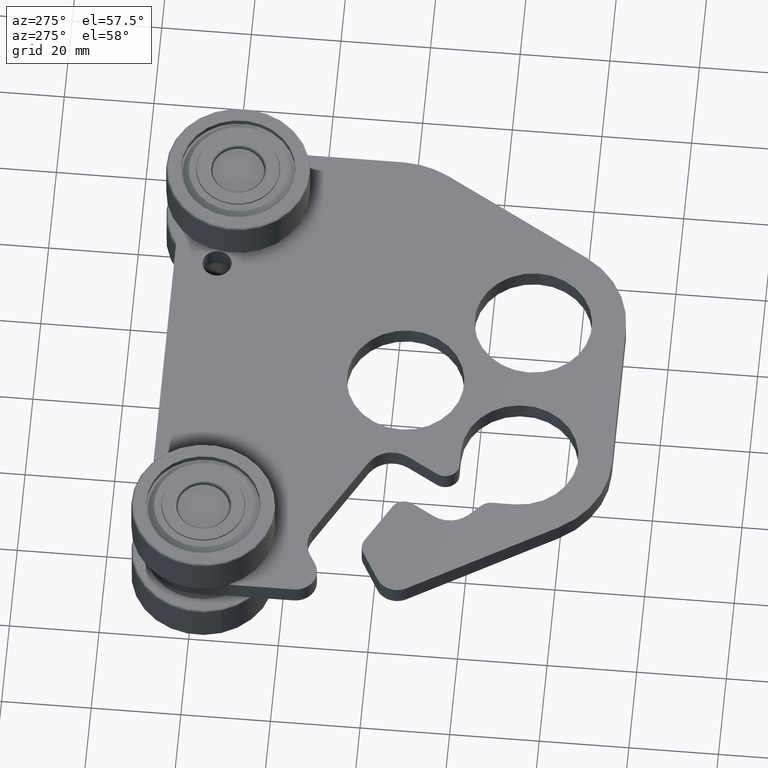
[diagram: clean part render]
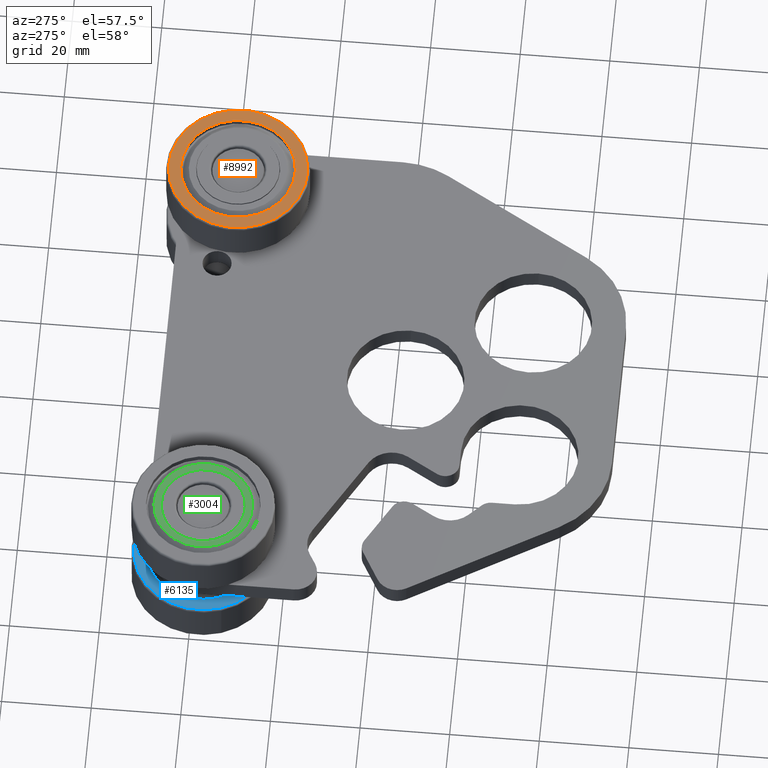
[diagram: same view with three faces highlighted in distinct colors, each labeled with its STEP entity id]
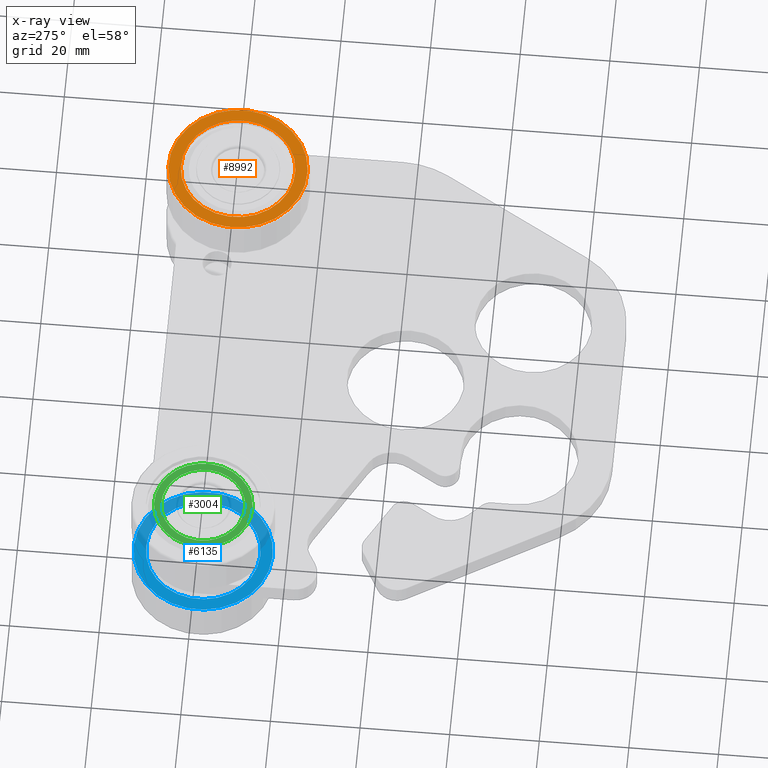
[diagram: x-ray of the same camera — body ghosted, the three highlighted faces saturated]
A machine part, auxiliary view with three faces highlighted in distinct colors.
The next image is the same camera in x-ray (body ghosted, the three faces saturated) — at least one of them is partly hidden behind the body in this view.
Their STEP definitions:

[orange] entity #8992 — the highlighted planar face has unit normal (0, 0, -1).
#8934=CARTESIAN_POINT('',(1.351014865895029,1.195396582901642,0.662700787401575));
#8935=VERTEX_POINT('',#8934);
#8936=CARTESIAN_POINT('',(1.749999999999998,1.500000000000001,0.662700787401575));
#8937=DIRECTION('',(0.0,0.0,-1.0));
#8938=DIRECTION('',(-0.794840973040489,-0.606817787788104,0.0));
#8939=AXIS2_PLACEMENT_3D('',#8936,#8937,#8938);
#8940=CIRCLE('',#8939,0.501968503937008);
#8941=EDGE_CURVE('',#8935,#8935,#8940,.T.);
#8973=CARTESIAN_POINT('',(1.749999999999998,1.500000000000001,0.662700787401575));
#8974=DIRECTION('',(0.0,0.0,-1.0));
#8975=DIRECTION('',(0.606817787788104,-0.794840973040489,0.0));
#8976=AXIS2_PLACEMENT_3D('',#8973,#8974,#8975);
#8977=PLANE('',#8976);
#8978=CARTESIAN_POINT('',(2.235040751264864,1.870302193335262,0.662700787401575));
#8979=VERTEX_POINT('',#8978);
#8980=CARTESIAN_POINT('',(1.749999999999998,1.500000000000001,0.662700787401575));
#8981=DIRECTION('',(0.0,0.0,1.0));
#8982=DIRECTION('',(-0.794840973040489,-0.606817787788104,0.0));
#8983=AXIS2_PLACEMENT_3D('',#8980,#8981,#8982);
#8984=CIRCLE('',#8983,0.610236220472441);
#8985=EDGE_CURVE('',#8979,#8979,#8984,.T.);
#8986=ORIENTED_EDGE('',*,*,#8985,.T.);
#8987=EDGE_LOOP('',(#8986));
#8988=FACE_OUTER_BOUND('',#8987,.T.);
#8989=ORIENTED_EDGE('',*,*,#8941,.T.);
#8990=EDGE_LOOP('',(#8989));
#8991=FACE_BOUND('',#8990,.T.);
#8992=ADVANCED_FACE('',(#8988,#8991),#8977,.F.);

[blue] entity #6135 — the highlighted planar face has unit normal (0, 0, 1).
#6104=CARTESIAN_POINT('',(-2.325160364184133,1.296091196246785,-0.09));
#6105=VERTEX_POINT('',#6104);
#6106=CARTESIAN_POINT('',(-1.750000000000002,1.500000000000001,-0.09));
#6107=DIRECTION('',(0.0,0.0,-1.0));
#6108=DIRECTION('',(0.942520854856576,0.334147330021399,0.0));
#6109=AXIS2_PLACEMENT_3D('',#6106,#6107,#6108);
#6110=CIRCLE('',#6109,0.610236220472441);
#6111=EDGE_CURVE('',#6105,#6105,#6110,.T.);
#6116=CARTESIAN_POINT('',(-1.750000000000002,1.500000000000001,-0.09));
#6117=DIRECTION('',(0.0,0.0,1.0));
#6118=DIRECTION('',(0.334147330021399,-0.942520854856576,0.0));
#6119=AXIS2_PLACEMENT_3D('',#6116,#6117,#6118);
#6120=PLANE('',#6119);
#6121=ORIENTED_EDGE('',*,*,#6111,.F.);
#6122=EDGE_LOOP('',(#6121));
#6123=FACE_OUTER_BOUND('',#6122,.T.);
#6124=CARTESIAN_POINT('',(-1.276884216558217,1.667731435345389,-0.09));
#6125=VERTEX_POINT('',#6124);
#6126=CARTESIAN_POINT('',(-1.750000000000002,1.500000000000001,-0.09));
#6127=DIRECTION('',(0.0,0.0,-1.0));
#6128=DIRECTION('',(0.942520854856576,0.334147330021399,0.0));
#6129=AXIS2_PLACEMENT_3D('',#6126,#6127,#6128);
#6130=CIRCLE('',#6129,0.501968503937008);
#6131=EDGE_CURVE('',#6125,#6125,#6130,.T.);
#6132=ORIENTED_EDGE('',*,*,#6131,.T.);
#6133=EDGE_LOOP('',(#6132));
#6134=FACE_BOUND('',#6133,.T.);
#6135=ADVANCED_FACE('',(#6123,#6134),#6120,.T.);

[green] entity #3004 — the highlighted planar face has unit normal (0, 0, -1).
#2973=CARTESIAN_POINT('',(-1.406561576265126,1.762196529369927,0.654826771653543));
#2974=VERTEX_POINT('',#2973);
#2975=CARTESIAN_POINT('',(-1.750000000000002,1.500000000000001,0.654826771653543));
#2976=DIRECTION('',(0.0,0.0,-1.0));
#2977=DIRECTION('',(-0.794840973040489,-0.606817787788104,0.0));
#2978=AXIS2_PLACEMENT_3D('',#2975,#2976,#2977);
#2979=CIRCLE('',#2978,0.432084448818898);
#2980=EDGE_CURVE('',#2974,#2974,#2979,.T.);
#2985=CARTESIAN_POINT('',(-1.750000000000002,1.500000000000001,0.654826771653543));
#2986=DIRECTION('',(0.0,0.0,-1.0));
#2987=DIRECTION('',(0.606817787788104,-0.794840973040489,0.0));
#2988=AXIS2_PLACEMENT_3D('',#2985,#2986,#2987);
#2989=PLANE('',#2988);
#2990=ORIENTED_EDGE('',*,*,#2980,.F.);
#2991=EDGE_LOOP('',(#2990));
#2992=FACE_OUTER_BOUND('',#2991,.T.);
#2993=CARTESIAN_POINT('',(-1.457645598794066,1.723196660724818,0.654826771653543));
#2994=VERTEX_POINT('',#2993);
#2995=CARTESIAN_POINT('',(-1.750000000000002,1.500000000000001,0.654826771653543));
#2996=DIRECTION('',(0.0,0.0,-1.0));
#2997=DIRECTION('',(-0.794840973040489,-0.606817787788104,0.0));
#2998=AXIS2_PLACEMENT_3D('',#2995,#2996,#2997);
#2999=CIRCLE('',#2998,0.367814960629921);
#3000=EDGE_CURVE('',#2994,#2994,#2999,.T.);
#3001=ORIENTED_EDGE('',*,*,#3000,.T.);
#3002=EDGE_LOOP('',(#3001));
#3003=FACE_BOUND('',#3002,.T.);
#3004=ADVANCED_FACE('',(#2992,#3003),#2989,.F.);